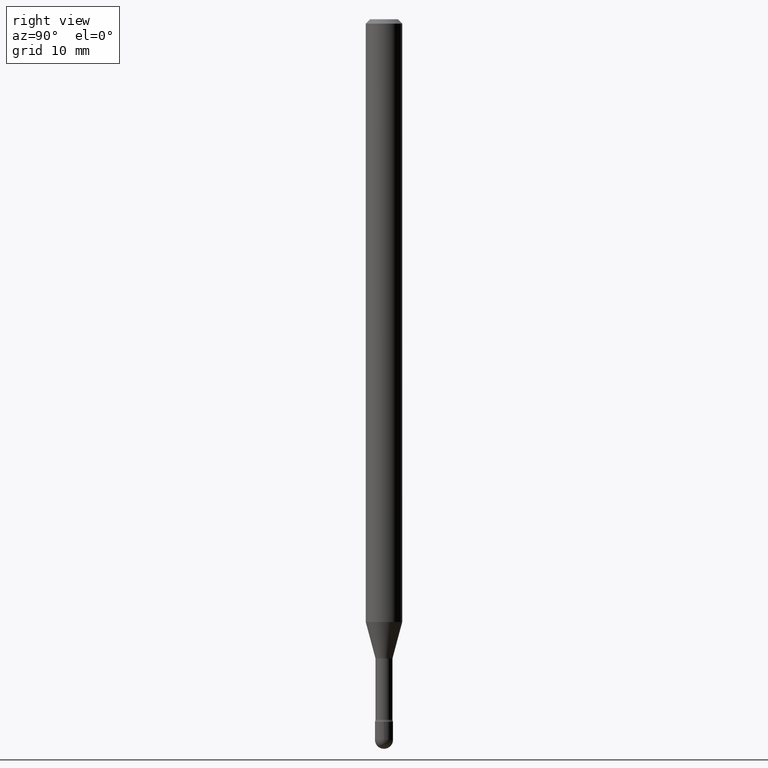
[diagram: clean part render]
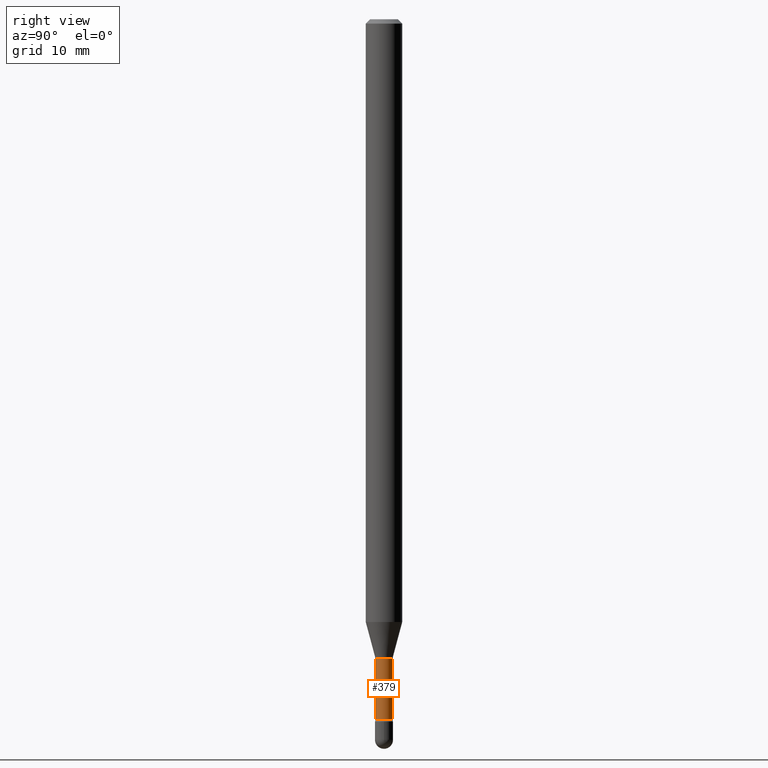
[diagram: same view with one face highlighted and labeled with its STEP entity id]
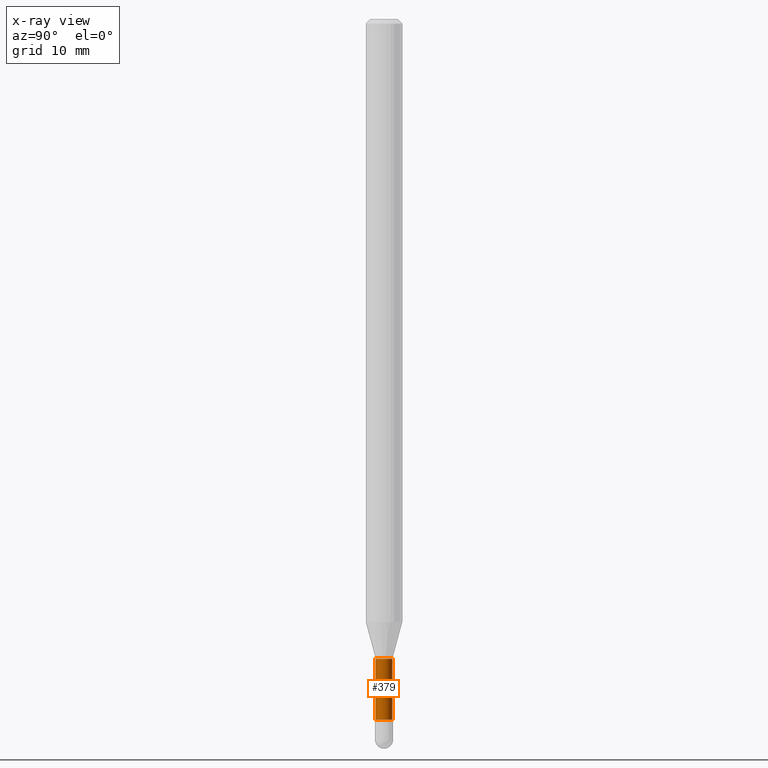
[diagram: x-ray of the same camera — body ghosted, the highlighted face saturated]
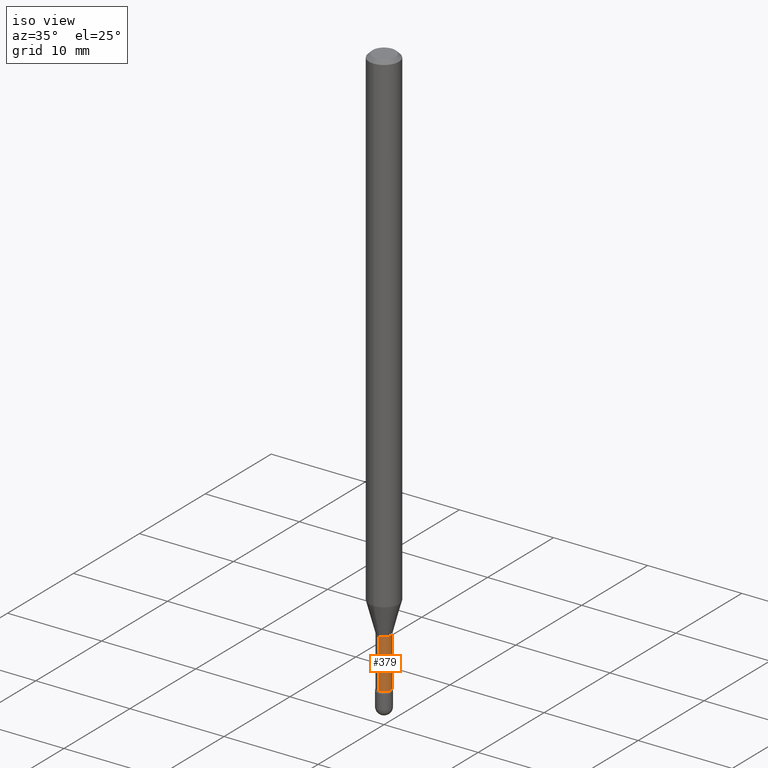
[diagram: same view with one face highlighted and labeled with its STEP entity id]
A machine part, right view. The second image highlights one B-rep face of the part: STEP entity #379.
The next image is the same camera in x-ray: the body ghosted, the highlighted face saturated — about 0% of this face is hidden behind the body in this view.
A second angle (iso view) of the same face is appended — the face is thin or edge-on in the first view.
In plain terms, the highlighted cylindrical surface (edge-blend (fillet) strip) has radius 0.7404 mm, axis along (-0, 0, 1).
Its self-contained STEP definition (entity closure, byte-faithful):
#5 = EDGE_CURVE ( 'NONE', #377, #417, #144, .T. ) ;
#20 = CARTESIAN_POINT ( 'NONE',  ( -2.035533620544960895E-16, -0.02915000000000839489, -2.399783525791634897 ) ) ;
#32 = VERTEX_POINT ( 'NONE', #290 ) ;
#40 = CARTESIAN_POINT ( 'NONE',  ( 5.360381977007107871E-29, -7.653273420231644262E-15, -2.191974787463811136 ) ) ;
#46 = AXIS2_PLACEMENT_3D ( 'NONE', #257, #511, #205 ) ;
#121 = CARTESIAN_POINT ( 'NONE',  ( -2.035533620545547117E-16, -0.02915000000000000577, 5.798505367833650763E-16 ) ) ;
#144 = LINE ( 'NONE', #121, #557 ) ;
#167 = AXIS2_PLACEMENT_3D ( 'NONE', #372, #285, #551 ) ;
#177 = CIRCLE ( 'NONE', #46, 0.02915000000000001618 ) ;
#194 = CYLINDRICAL_SURFACE ( 'NONE', #167, 0.02915000000000000577 ) ;
#205 = DIRECTION ( 'NONE',  ( -6.982962677686265922E-15, -1.000000000000000000, 0.000000000000000000 ) ) ;
#216 = DIRECTION ( 'NONE',  ( -6.982962677686265922E-15, -1.000000000000000000, 0.000000000000000000 ) ) ;
#217 = CIRCLE ( 'NONE', #534, 0.02914999999999999536 ) ;
#233 = DIRECTION ( 'NONE',  ( -2.445457861862203003E-29, 3.491497011736498785E-15, 1.000000000000000000 ) ) ;
#254 = ORIENTED_EDGE ( 'NONE', *, *, #5, .F. ) ;
#257 = CARTESIAN_POINT ( 'NONE',  ( 5.868569489914549591E-29, -8.378837009115971739E-15, -2.399783525791634897 ) ) ;
#265 = VECTOR ( 'NONE', #233, 39.37007874015748143 ) ;
#283 = LINE ( 'NONE', #531, #265 ) ;
#285 = DIRECTION ( 'NONE',  ( -2.445457861862202723E-29, 3.491497011736498785E-15, 1.000000000000000000 ) ) ;
#290 = CARTESIAN_POINT ( 'NONE',  ( 2.136957277799089577E-16, 0.02914999999999163746, -2.399783525791634897 ) ) ;
#345 = FACE_OUTER_BOUND ( 'NONE', #385, .T. ) ;
#372 = CARTESIAN_POINT ( 'NONE',  ( -1.169113584055446105E-44, 1.669184350826100908E-30, 4.780733988912460139E-16 ) ) ;
#377 = VERTEX_POINT ( 'NONE', #20 ) ;
#379 = ADVANCED_FACE ( 'NONE', ( #345 ), #194, .T. ) ;
#385 = EDGE_LOOP ( 'NONE', ( #463, #392, #564, #254 ) ) ;
#388 = CARTESIAN_POINT ( 'NONE',  ( 2.071232074741278920E-16, 0.02914999999999233482, -2.191974787463811136 ) ) ;
#392 = ORIENTED_EDGE ( 'NONE', *, *, #475, .T. ) ;
#394 = DIRECTION ( 'NONE',  ( -2.445457861862202723E-29, 3.491497011736498785E-15, 1.000000000000000000 ) ) ;
#401 = EDGE_CURVE ( 'NONE', #377, #32, #177, .T. ) ;
#417 = VERTEX_POINT ( 'NONE', #541 ) ;
#463 = ORIENTED_EDGE ( 'NONE', *, *, #401, .T. ) ;
#475 = EDGE_CURVE ( 'NONE', #32, #513, #283, .T. ) ;
#504 = DIRECTION ( 'NONE',  ( -2.445457861862203003E-29, 3.491497011736498785E-15, 1.000000000000000000 ) ) ;
#511 = DIRECTION ( 'NONE',  ( -2.445457861862202723E-29, 3.491497011736498785E-15, 1.000000000000000000 ) ) ;
#513 = VERTEX_POINT ( 'NONE', #388 ) ;
#531 = CARTESIAN_POINT ( 'NONE',  ( 2.071232074740692205E-16, 0.02915000000000000577, 3.762962609991270994E-16 ) ) ;
#534 = AXIS2_PLACEMENT_3D ( 'NONE', #40, #394, #216 ) ;
#541 = CARTESIAN_POINT ( 'NONE',  ( -2.035533620545010198E-16, -0.02915000000000764896, -2.191974787463811136 ) ) ;
#549 = EDGE_CURVE ( 'NONE', #417, #513, #217, .T. ) ;
#551 = DIRECTION ( 'NONE',  ( -6.982962677686266711E-15, -1.000000000000000000, 3.491497011736501152E-15 ) ) ;
#557 = VECTOR ( 'NONE', #504, 39.37007874015748143 ) ;
#564 = ORIENTED_EDGE ( 'NONE', *, *, #549, .F. ) ;